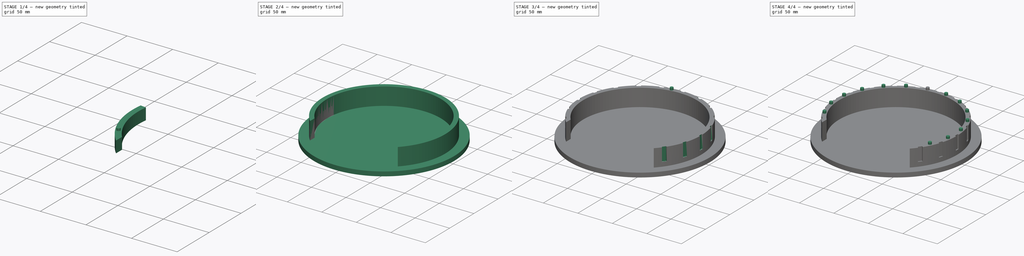
[diagram: build sequence overview — one tinted view per stage of 4, left to right]
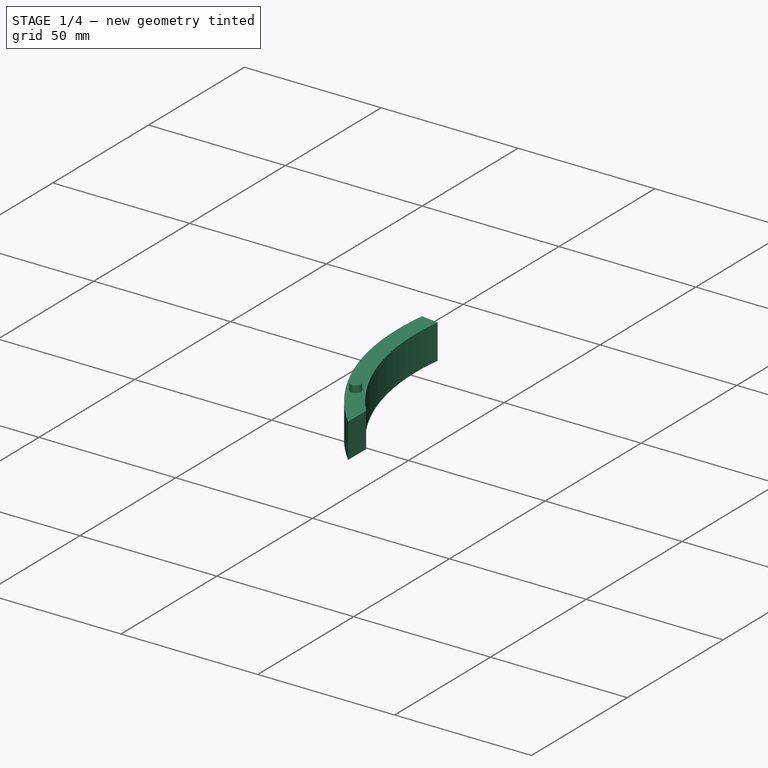
[diagram: stage 1 of 4 — iso view after this stage's code; geometry added in this stage tinted green]
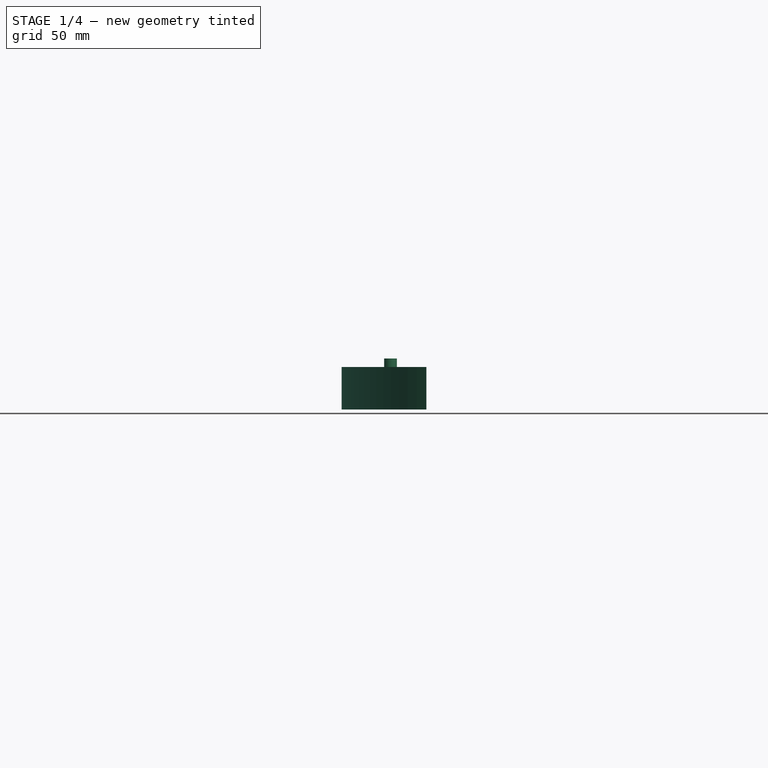
[diagram: stage 1 of 4 — front view after this stage's code; geometry added in this stage tinted green]
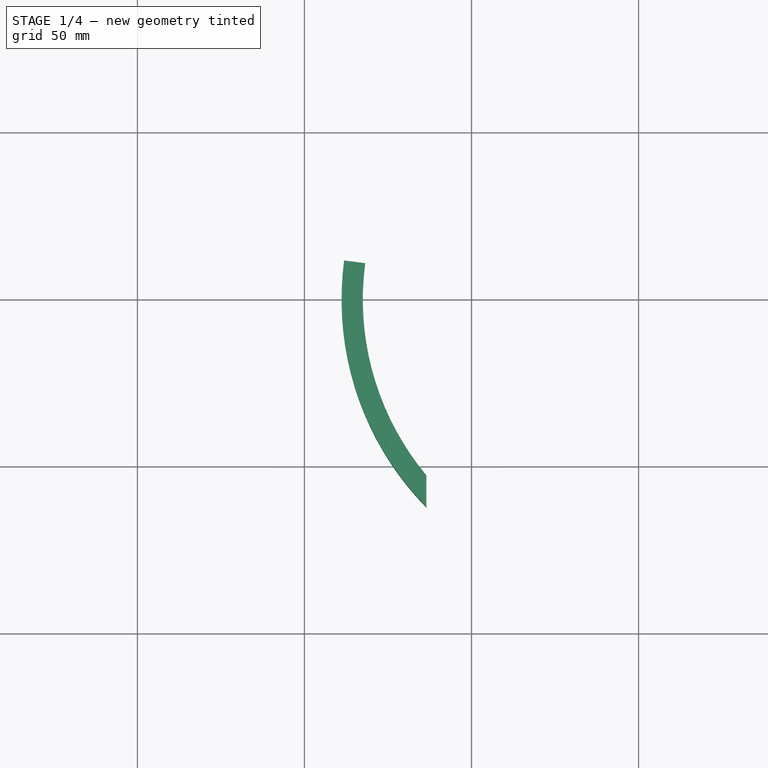
[diagram: stage 1 of 4 — top view after this stage's code; geometry added in this stage tinted green]
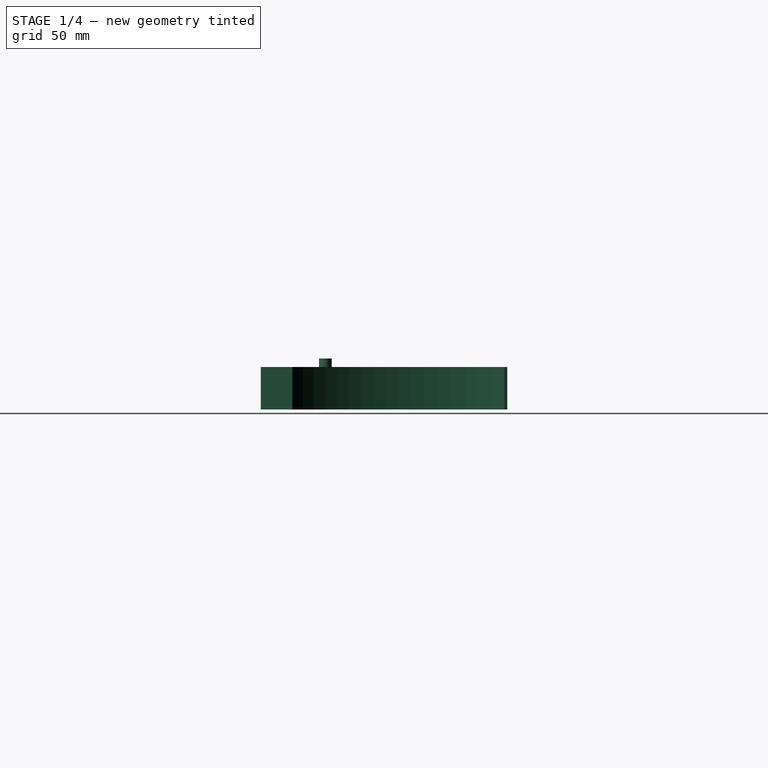
[diagram: stage 1 of 4 — right view after this stage's code; geometry added in this stage tinted green]
FCSTD DOCUMENT  (FreeCAD 0.15R4671 (Git))
Label: castle
License: All rights reserved
LicenseURL: http://en.wikipedia.org/wiki/All_rights_reserved
objects: Sketcher::SketchObject×6, PartDesign::Pad×5, PartDesign::PolarPattern×3, PartDesign::Pocket×1, PartDesign::Fillet×1
note: 22 computed .brp shape members not serialized (recipe doc carries the construction recipe); baked Part::Feature solids carry a one-line shape summary decoded from their .brp

FEATURE [Sketcher::SketchObject] Sketch004  label="WorkLines003"
  Placement = pos=(0,0,6.35) rot=(0,0,1;0rad)
  sketch-geometry (17):
    g0: LineSegment [constr] StartX=-63.5 StartY=-46.342 StartZ=0 EndX=63.5 EndY=-46.342 EndZ=0
    g1: LineSegment [constr] StartX=63.5 StartY=-46.342 StartZ=0 EndX=63.5 EndY=-62.217 EndZ=0
    g2: LineSegment [constr] StartX=63.5 StartY=-62.217 StartZ=0 EndX=-63.5 EndY=-62.217 EndZ=0
    g3: LineSegment [constr] StartX=-63.5 StartY=-62.217 StartZ=0 EndX=-63.5 EndY=-46.342 EndZ=0
    g4: LineSegment [constr] StartX=0 StartY=0 StartZ=0 EndX=-127 EndY=0 EndZ=0
    g5: LineSegment [constr] StartX=0 StartY=0 StartZ=0 EndX=-89.8026 EndY=89.8026 EndZ=0
    g6: Circle [constr] CenterX=0 CenterY=0 CenterZ=0 NormalX=0 NormalY=0 NormalZ=1 Radius=88.9
    g7: Circle [constr] CenterX=0 CenterY=0 CenterZ=0 NormalX=0 NormalY=0 NormalZ=1 Radius=82.55
    g8: LineSegment [constr] StartX=0 StartY=0 StartZ=0 EndX=-125.913 EndY=16.5768 EndZ=0
    g9: GeomPoint [constr] X=-63.5 Y=-52.7471 Z=0
    g10: GeomPoint [constr] X=63.5 Y=-52.7471 Z=0
    g11: LineSegment StartX=-63.5 StartY=-62.217 StartZ=0 EndX=-63.5 EndY=-52.7471 EndZ=0
    g12: GeomPoint [constr] X=-81.8438 Y=10.7749 Z=0
    g13: GeomPoint [constr] X=-88.1394 Y=11.6038 Z=0
    g14: LineSegment StartX=-88.1394 StartY=11.6038 StartZ=0 EndX=-81.8438 EndY=10.7749 EndZ=0
    g15: ArcOfCircle CenterX=0 CenterY=0 CenterZ=0 NormalX=0 NormalY=0 NormalZ=1 Radius=88.9 StartAngle=3.01069 EndAngle=3.91679
    g16: ArcOfCircle CenterX=0 CenterY=0 CenterZ=0 NormalX=0 NormalY=0 NormalZ=1 Radius=82.55 StartAngle=3.01069 EndAngle=3.83475
  constraints (43):
    c: Coincident(g0,g1)
    c: Coincident(g1,g2)
    c: Coincident(g2,g3)
    c: Coincident(g3,g0)
    c: Horizontal(g0)
    c: Horizontal(g2)
    c: Vertical(g1)
    c: Vertical(g3)
    c: Symmetric(g0,g0,g-2)
    c: DistanceY(g0,g1) = -15.875
    c: DistanceX(g0,g0) = 127
    c: Coincident(g4,g-1)
    c: Distance(g4) = 127
    c: Angle(g-2,g4) = 1.5708
    c: Coincident(g5,g-1)
    c: Distance(g5) = 127
    c: Angle(g-2,g5) = 0.785398
    c: Coincident(g6,g-1)
    c: Radius(g6) = 88.9
    c: PointOnObject(g2,g6)
    c: Radius(g7) = 82.55
    c: Coincident(g7,g-1)
    c: Coincident(g8,g-1)
    c: Distance(g8) = 127
    c: Angle(g-2,g8) = 1.4399
    c: PointOnObject(g9,g7)
    c: PointOnObject(g9,g3)
    c: PointOnObject(g10,g1)
    c: PointOnObject(g10,g7)
    c: Coincident(g11,g2)
    c: Coincident(g11,g9)
    c: PointOnObject(g12,g7)
    c: PointOnObject(g12,g8)
    c: PointOnObject(g13,g6)
    c: PointOnObject(g13,g8)
    c: Coincident(g14,g13)
    c: Coincident(g14,g12)
    c: Coincident(g15,g13)
    c: Coincident(g15,g2)
    c: Radius(g15) = 88.9
    c: Coincident(g16,g12)
    c: Coincident(g16,g9)
    c: Radius(g16) = 82.55
FEATURE [PartDesign::Pad] Pad003
  Length = 12.7
  Length2 = 100
  Placement = pos=(0,0,6.35) rot=(0,0,1;0rad)
  Sketch = -> Sketch004
  Type = 0
FEATURE [Sketcher::SketchObject] Sketch005
  Placement = pos=(0,0,19.05) rot=(0,0,1;0rad)
  Support = -> Pad003 [Face6]
  sketch-geometry (3):
    g0: Circle [constr] CenterX=0 CenterY=0 CenterZ=0 NormalX=0 NormalY=0 NormalZ=1 Radius=85.725
    g1: Circle CenterX=-74.24 CenterY=-42.8625 CenterZ=0 NormalX=0 NormalY=0 NormalZ=1 Radius=1.905
    g2: LineSegment [constr] StartX=0 StartY=0 StartZ=0 EndX=-109.985 EndY=-63.5 EndZ=0
  constraints (8):
    c: Coincident(g0,g-1)
    c: Radius(g0) = 85.725
    c: Radius(g1) = 1.905
    c: Coincident(g2,g-1)
    c: Distance(g2) = 127
    c: Angle(g-2,g2) = 2.0944
    c: PointOnObject(g1,g0)
    c: PointOnObject(g1,g2)
FEATURE [PartDesign::Pad] Pad004
  Length = 2.54
  Length2 = 100
  Placement = pos=(0,0,6.35) rot=(0,0,1;0rad)
  Sketch = -> Sketch005
  Type = 0
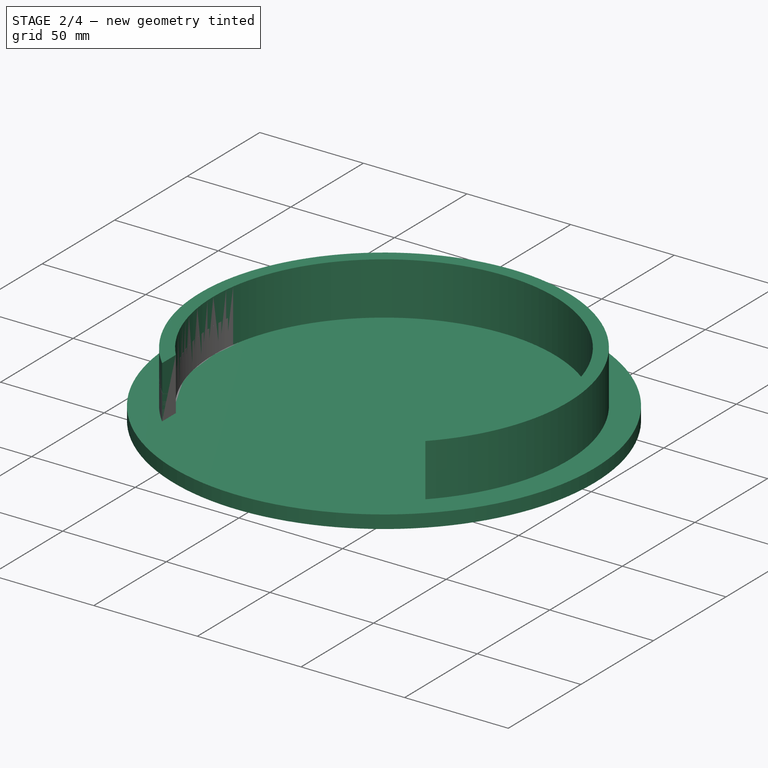
[diagram: stage 2 of 4 — iso view after this stage's code; geometry added in this stage tinted green]
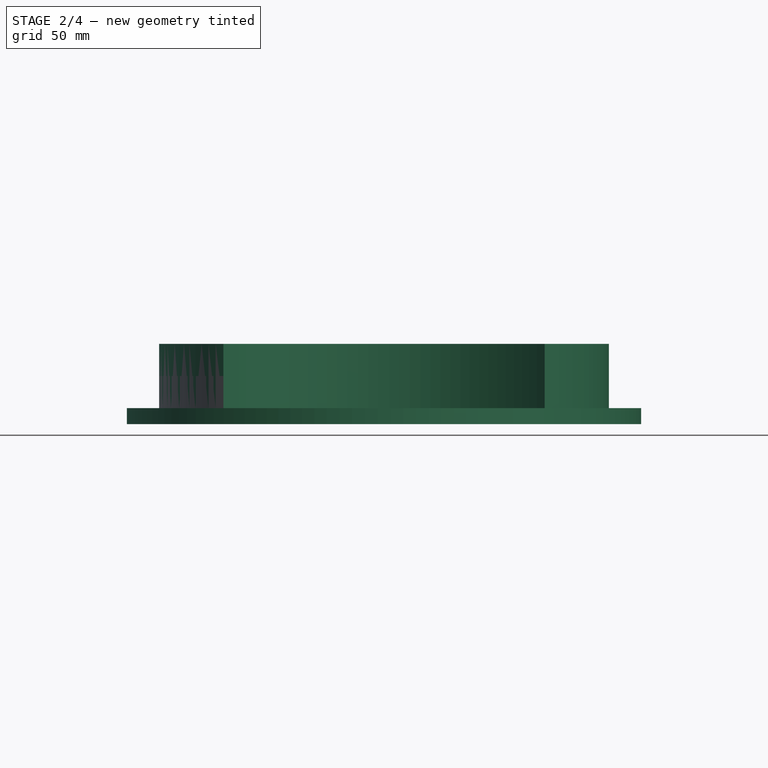
[diagram: stage 2 of 4 — front view after this stage's code; geometry added in this stage tinted green]
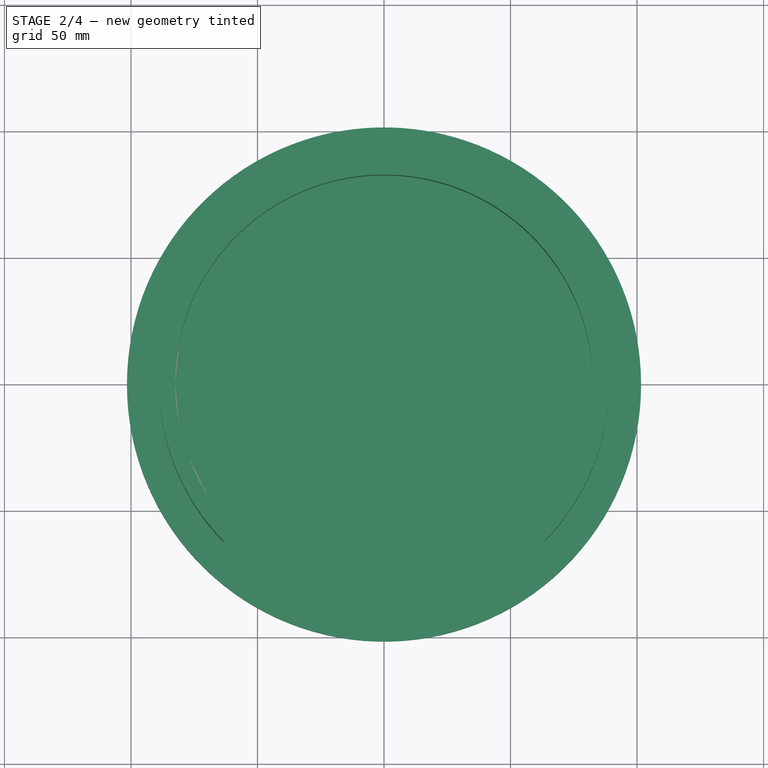
[diagram: stage 2 of 4 — top view after this stage's code; geometry added in this stage tinted green]
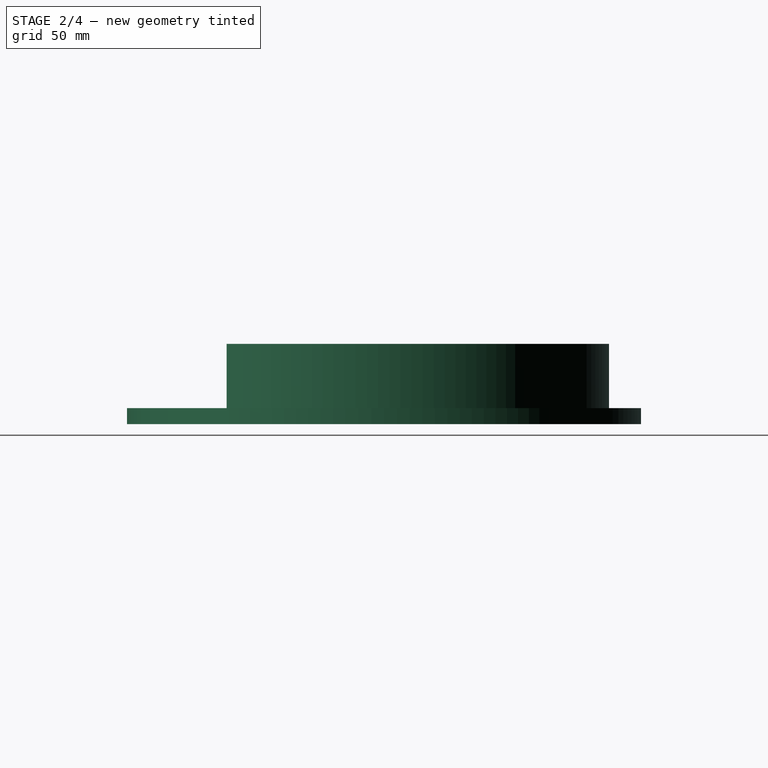
[diagram: stage 2 of 4 — right view after this stage's code; geometry added in this stage tinted green]
FEATURE [Sketcher::SketchObject] Sketch
  sketch-geometry (1):
    g0: Circle CenterX=0 CenterY=0 CenterZ=0 NormalX=0 NormalY=0 NormalZ=1 Radius=101.6
  constraints (2):
    c: Coincident(g0,g-1)
    c: Radius(g0) = 101.6
FEATURE [PartDesign::Pad] Pad
  Length = 6.35
  Length2 = 100
  Sketch = -> Sketch
  Type = 0
FEATURE [Sketcher::SketchObject] Sketch001
  Placement = pos=(0,0,6.35) rot=(0,0,1;0rad)
  Support = -> Pad [Face3]
  sketch-geometry (8):
    g0: LineSegment [constr] StartX=-63.5 StartY=-46.342 StartZ=0 EndX=63.5 EndY=-46.342 EndZ=0
    g1: LineSegment [constr] StartX=63.5 StartY=-46.342 StartZ=0 EndX=63.5 EndY=-62.217 EndZ=0
    g2: LineSegment [constr] StartX=63.5 StartY=-62.217 StartZ=0 EndX=-63.5 EndY=-62.217 EndZ=0
    g3: LineSegment [constr] StartX=-63.5 StartY=-62.217 StartZ=0 EndX=-63.5 EndY=-46.342 EndZ=0
    g4: ArcOfCircle CenterX=0 CenterY=0 CenterZ=0 NormalX=0 NormalY=0 NormalZ=1 Radius=88.9 StartAngle=5.50799 EndAngle=10.2
    g5: ArcOfCircle CenterX=0 CenterY=0 CenterZ=0 NormalX=0 NormalY=0 NormalZ=1 Radius=82.55 StartAngle=5.59003 EndAngle=10.1179
    g6: LineSegment StartX=-63.5 StartY=-52.7471 StartZ=0 EndX=-63.5 EndY=-62.217 EndZ=0
    g7: LineSegment StartX=63.5 StartY=-52.7471 StartZ=0 EndX=63.5 EndY=-62.217 EndZ=0
  constraints (24):
    c: Coincident(g0,g1)
    c: Coincident(g1,g2)
    c: Coincident(g2,g3)
    c: Coincident(g3,g0)
    c: Horizontal(g0)
    c: Horizontal(g2)
    c: Vertical(g1)
    c: Vertical(g3)
    c: Symmetric(g0,g0,g-2)
    c: DistanceY(g0,g1) = -15.875
    c: DistanceX(g0,g0) = 127
    c: Distance(g-1,g2) = 88.9
    c: Coincident(g4,g-1)
    c: PointOnObject(g4,g2)
    c: PointOnObject(g4,g2)
    c: Radius(g4) = 88.9
    c: Coincident(g5,g-1)
    c: Radius(g5) = 82.55
    c: PointOnObject(g5,g1)
    c: PointOnObject(g5,g3)
    c: Coincident(g6,g5)
    c: Coincident(g6,g2)
    c: Coincident(g7,g5)
    c: Coincident(g7,g1)
FEATURE [PartDesign::Pad] Pad001
  Length = 25.4
  Length2 = 100
  Sketch = -> Sketch001
  Type = 0
FEATURE [PartDesign::PolarPattern] PolarPattern002
  Angle = 360
  Axis = -> Sketch005 [N_Axis]
  Occurrences = 24
  Originals = -> [Pad004]
  Placement = pos=(0,0,6.35) rot=(0,0,1;0rad)
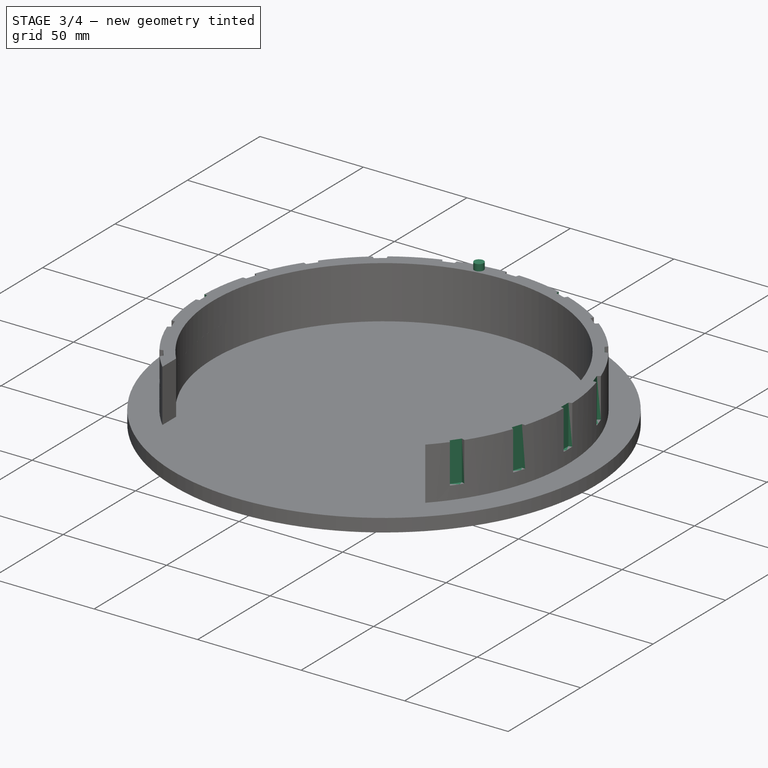
[diagram: stage 3 of 4 — iso view after this stage's code; geometry added in this stage tinted green]
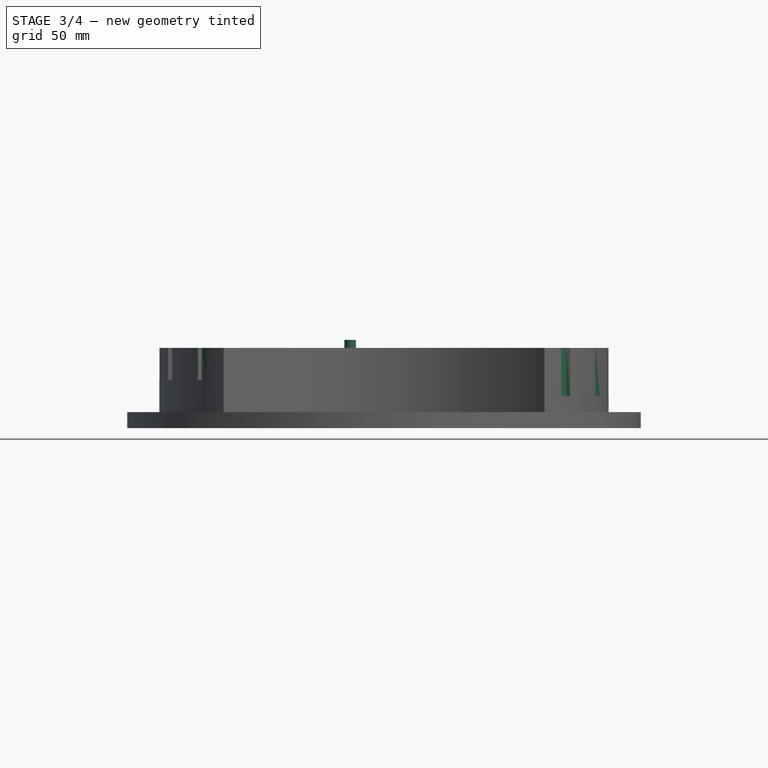
[diagram: stage 3 of 4 — front view after this stage's code; geometry added in this stage tinted green]
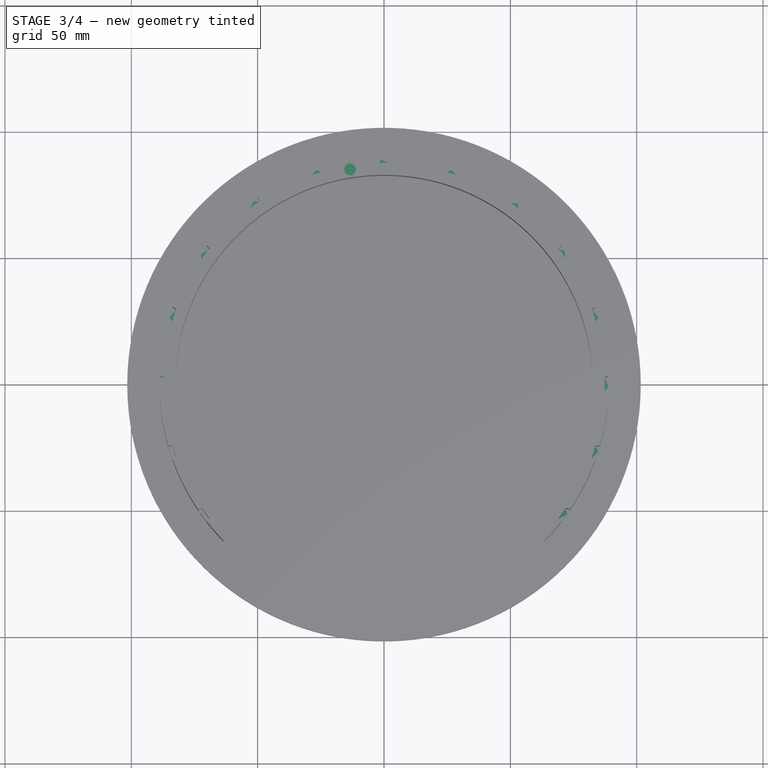
[diagram: stage 3 of 4 — top view after this stage's code; geometry added in this stage tinted green]
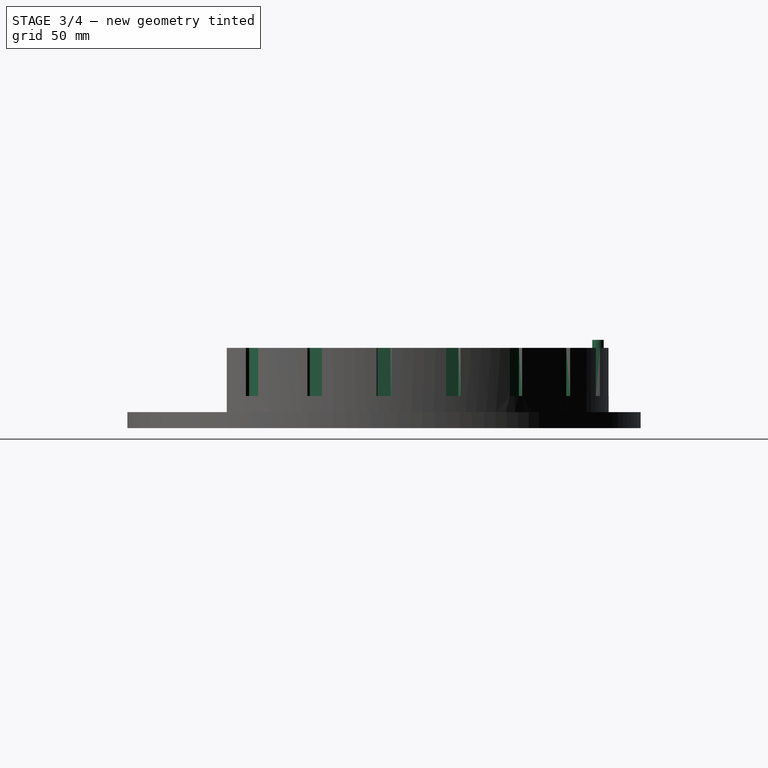
[diagram: stage 3 of 4 — right view after this stage's code; geometry added in this stage tinted green]
FEATURE [Sketcher::SketchObject] Sketch002
  Placement = pos=(0,0,31.75) rot=(0,0,1;0rad)
  Support = -> Pad001 [Face8]
  sketch-geometry (4):
    g0: LineSegment StartX=-4.19284 StartY=92.8838 StartZ=0 EndX=-2.54 EndY=87.3031 EndZ=0
    g1: LineSegment StartX=-2.54 StartY=87.3031 StartZ=0 EndX=2.54 EndY=87.3031 EndZ=0
    g2: LineSegment StartX=2.54 StartY=87.3031 StartZ=0 EndX=4.19284 EndY=92.8838 EndZ=0
    g3: LineSegment StartX=4.19284 StartY=92.8838 StartZ=0 EndX=-4.19284 EndY=92.8838 EndZ=0
  constraints (11):
    c: Coincident(g0,g1)
    c: Coincident(g1,g2)
    c: Coincident(g2,g3)
    c: Coincident(g3,g0)
    c: Symmetric(g0,g1,g-2)
    c: Horizontal(g3)
    c: Symmetric(g0,g2,g-2)
    c: DistanceX(g1) = 2.54
    c: DistanceX(g2) = 4.19284
    c: DistanceY(g2) = 92.8838
    c: DistanceY(g0) = 87.3031
FEATURE [PartDesign::Pocket] Pocket
  Length = 19.05
  Sketch = -> Sketch002
  Type = 0
FEATURE [PartDesign::PolarPattern] PolarPattern
  Angle = 360
  Axis = -> Sketch002 [N_Axis]
  Occurrences = 20
  Originals = -> [Pocket]
FEATURE [Sketcher::SketchObject] Sketch003
  Placement = pos=(0,0,31.75) rot=(0,0,1;0rad)
  Support = -> PolarPattern [Face8]
  sketch-geometry (3):
    g0: LineSegment [constr] StartX=0 StartY=0 StartZ=0 EndX=-19.8672 EndY=125.436 EndZ=0
    g1: Circle CenterX=-13.4103 CenterY=84.6696 CenterZ=0 NormalX=0 NormalY=0 NormalZ=1 Radius=2.286
    g2: Circle [constr] CenterX=0 CenterY=0 CenterZ=0 NormalX=0 NormalY=0 NormalZ=1 Radius=85.725
  constraints (8):
    c: Coincident(g0,g-1)
    c: Distance(g0) = 127
    c: Angle(g-2,g0) = 0.15708
    c: PointOnObject(g1,g0)
    c: Coincident(g2,g-1)
    c: Radius(g2) = 85.725
    c: PointOnObject(g1,g2)
    c: Radius(g1) = 2.286
FEATURE [PartDesign::Pad] Pad002
  Length = 3.175
  Length2 = 100
  Sketch = -> Sketch003
  Type = 0
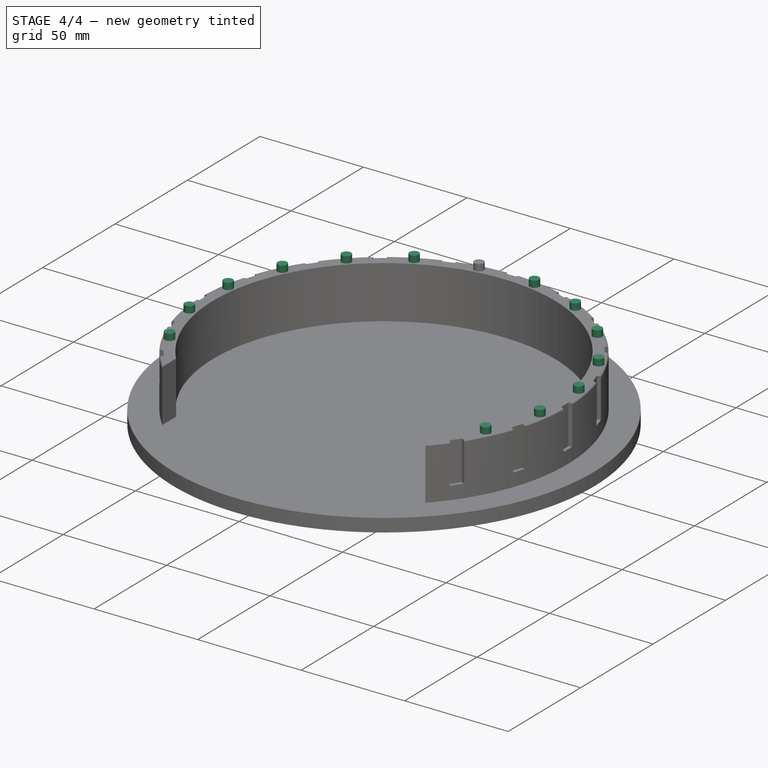
[diagram: stage 4 of 4 — iso view after this stage's code; geometry added in this stage tinted green]
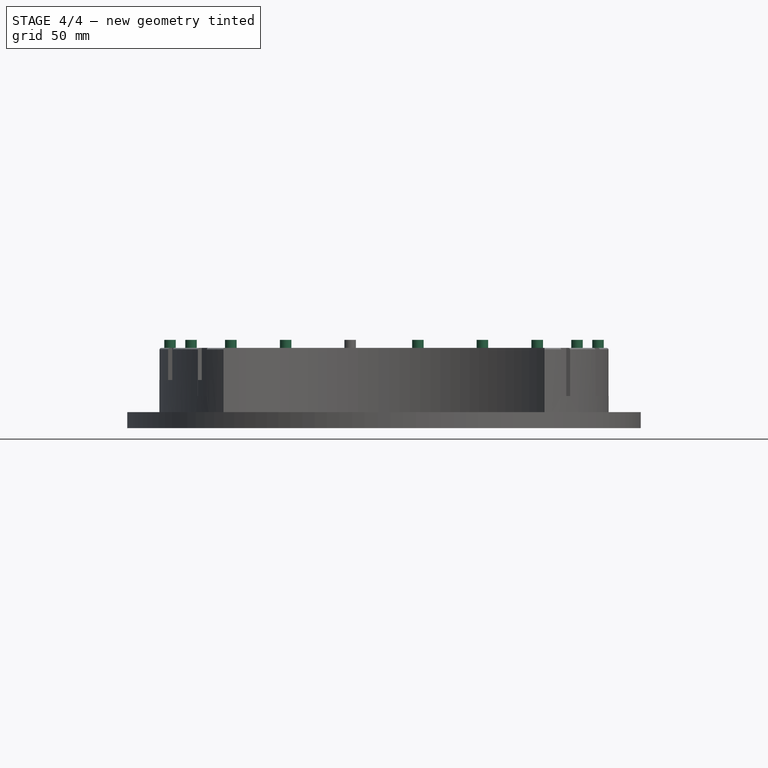
[diagram: stage 4 of 4 — front view after this stage's code; geometry added in this stage tinted green]
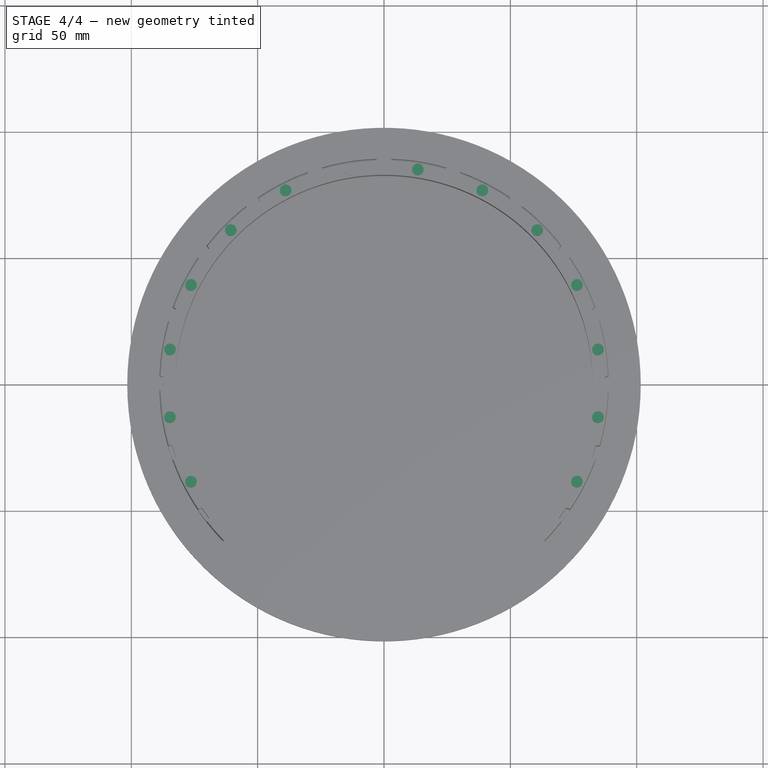
[diagram: stage 4 of 4 — top view after this stage's code; geometry added in this stage tinted green]
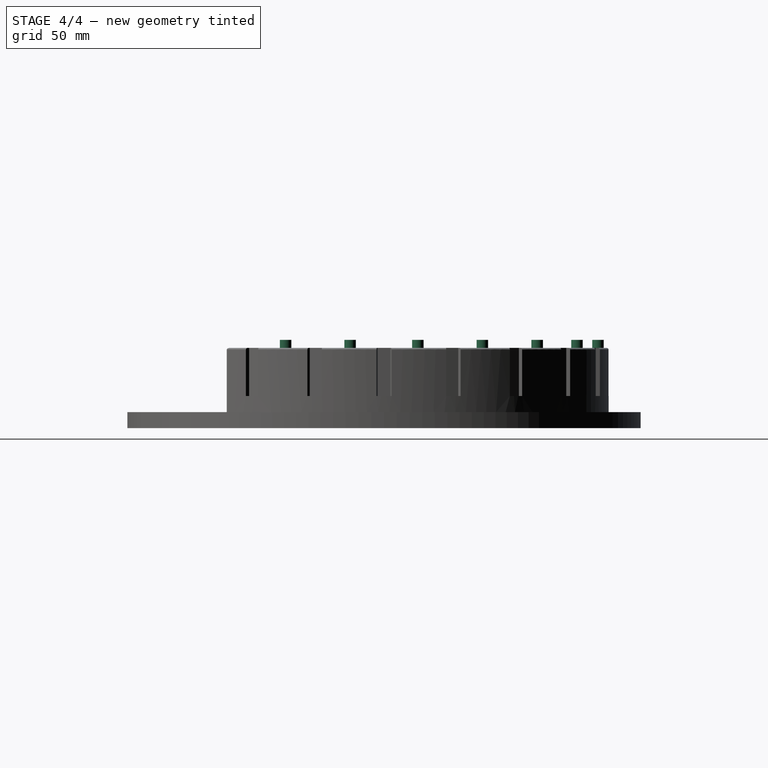
[diagram: stage 4 of 4 — right view after this stage's code; geometry added in this stage tinted green]
FEATURE [PartDesign::PolarPattern] PolarPattern001
  Angle = 360
  Axis = -> Sketch003 [N_Axis]
  Occurrences = 20
  Originals = -> [Pad002]
FEATURE [PartDesign::Fillet] Fillet
  Base = -> PolarPattern001 [Edge32,Edge24,Edge16,Edge8,Edge40,Edge48,Edge56,Edge64,Edge63,Edge55,Edge47,Edge39,Edge31,Edge23,Edge15,Edge7]
  Radius = 0.762
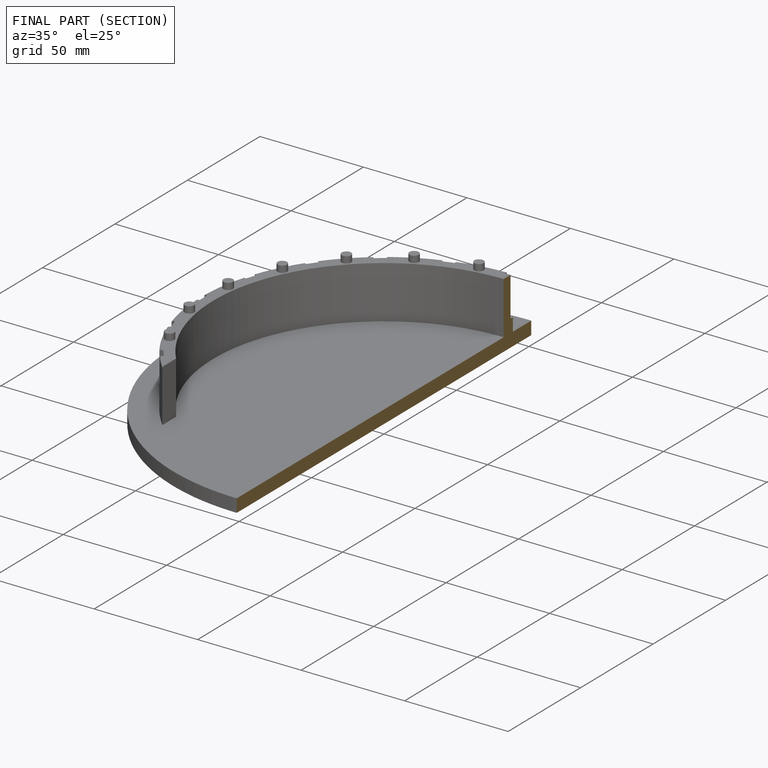
[diagram: finished part — half-section view (interior)]
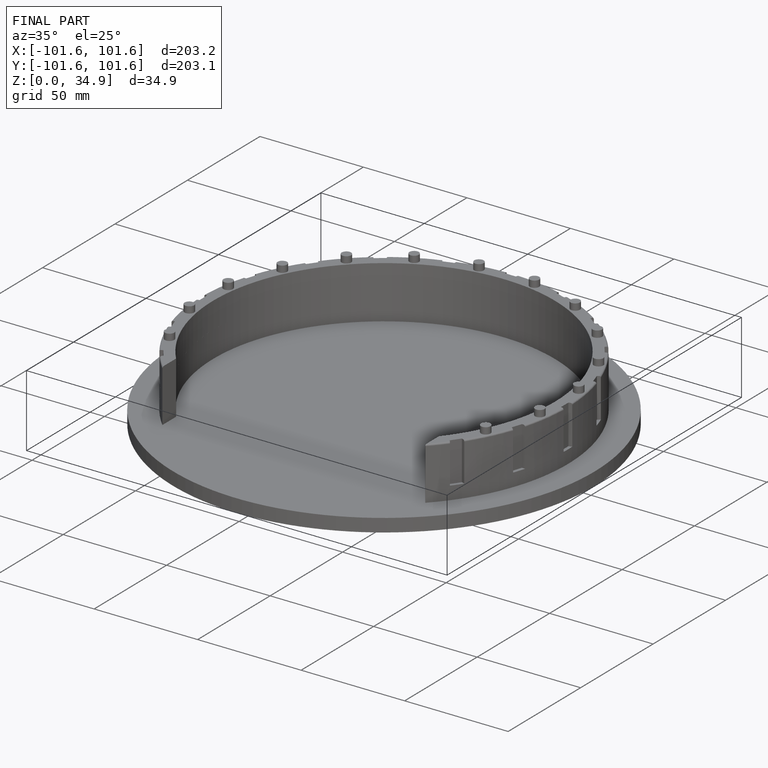
[diagram: finished part — iso view with bounding-box wireframe]
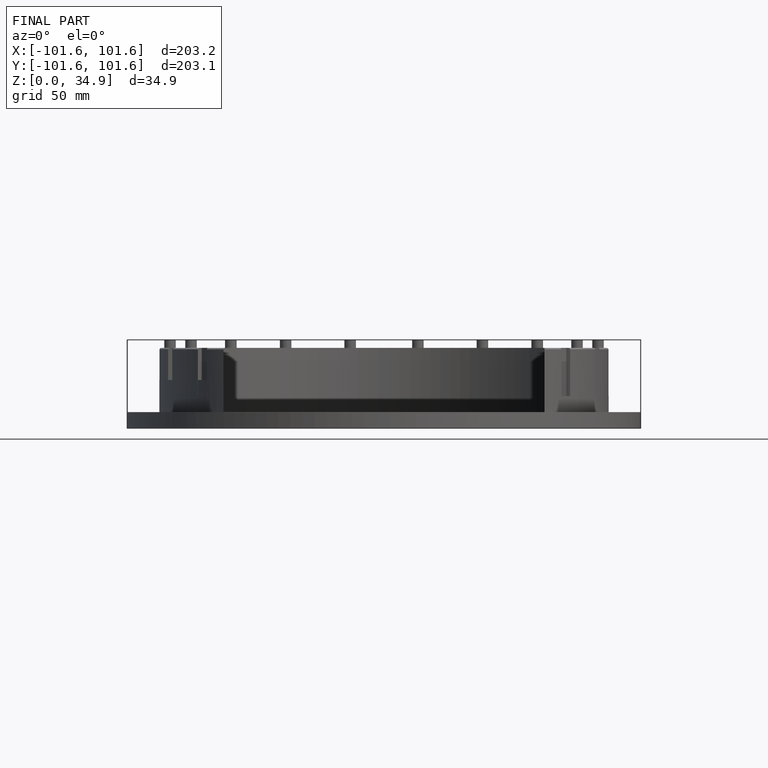
[diagram: finished part — front view with bounding-box wireframe]
